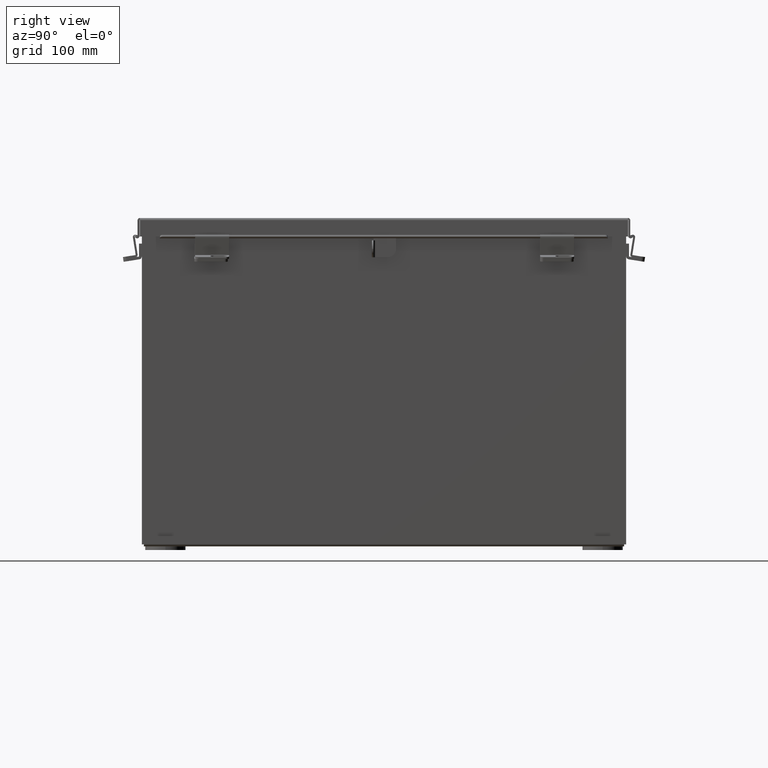
[diagram: clean part render]
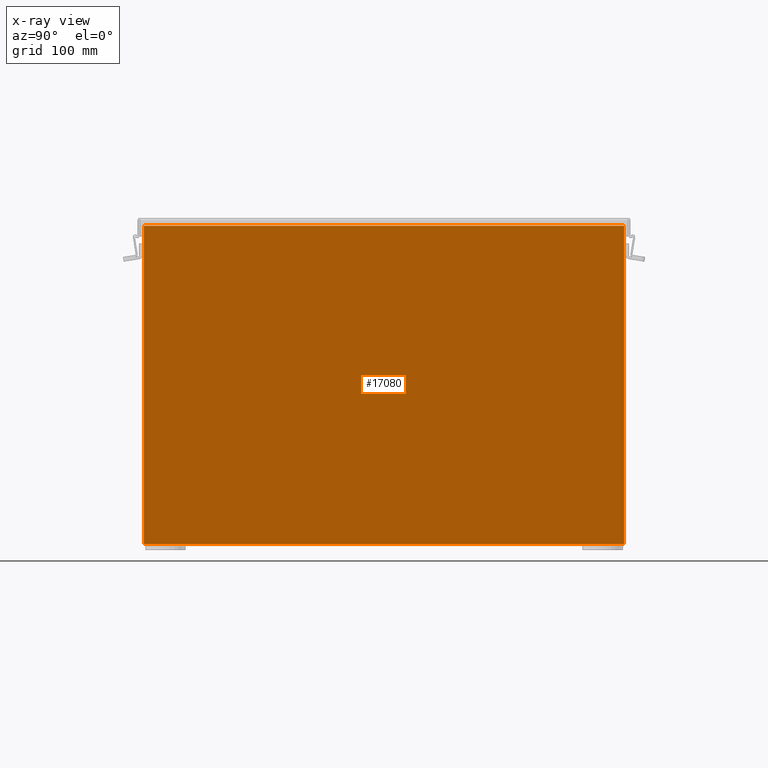
[diagram: x-ray — body ghosted, one internal face saturated and labeled with its STEP entity id]
A machine part, right view, then the same camera in x-ray: the body is ghosted and one INTERNAL B-rep face — a face not visible from any outside direction — is saturated and labeled: STEP entity #17080.
In plain terms, the highlighted planar face has unit normal (-1, 0, 0).
Its self-contained STEP definition (entity closure, byte-faithful):
#36 = PLANE ( 'NONE',  #1511 ) ;
#1287 = CARTESIAN_POINT ( 'NONE',  ( 5.925299999999999100, -8.925300000000003600, 0.01300000000000011600 ) ) ;
#1370 = FACE_OUTER_BOUND ( 'NONE', #6200, .T. ) ;
#1511 = AXIS2_PLACEMENT_3D ( 'NONE', #7590, #18026, #9102 ) ;
#4210 = ORIENTED_EDGE ( 'NONE', *, *, #18274, .F. ) ;
#4909 = ORIENTED_EDGE ( 'NONE', *, *, #10004, .F. ) ;
#5287 = VERTEX_POINT ( 'NONE', #6086 ) ;
#6086 = CARTESIAN_POINT ( 'NONE',  ( 5.925299999999999100, -8.925300000000003600, 0.01300000000000011600 ) ) ;
#6185 = LINE ( 'NONE', #14444, #13670 ) ;
#6200 = EDGE_LOOP ( 'NONE', ( #10662, #14826, #4210, #4909 ) ) ;
#6643 = CARTESIAN_POINT ( 'NONE',  ( 5.925300000000040900, 8.925299999999996500, 11.83760000000000000 ) ) ;
#6692 = LINE ( 'NONE', #1287, #10200 ) ;
#7590 = CARTESIAN_POINT ( 'NONE',  ( 5.925299999999999100, 0.0000000000000000000, -2.102669252623462500E-014 ) ) ;
#9102 = DIRECTION ( 'NONE',  ( 3.503965158194252100E-015, 0.0000000000000000000, 1.000000000000000000 ) ) ;
#9566 = VECTOR ( 'NONE', #16226, 39.37007874015748100 ) ;
#10004 = EDGE_CURVE ( 'NONE', #5287, #15358, #6692, .T. ) ;
#10200 = VECTOR ( 'NONE', #11812, 39.37007874015748100 ) ;
#10662 = ORIENTED_EDGE ( 'NONE', *, *, #11042, .F. ) ;
#11042 = EDGE_CURVE ( 'NONE', #13476, #5287, #6185, .T. ) ;
#11812 = DIRECTION ( 'NONE',  ( 0.0000000000000000000, 1.000000000000000000, 0.0000000000000000000 ) ) ;
#13077 = DIRECTION ( 'NONE',  ( 3.503965158194252900E-015, -9.220960942616452700E-017, 1.000000000000000000 ) ) ;
#13171 = CARTESIAN_POINT ( 'NONE',  ( 5.925300000000040900, -8.925300000000001800, 11.83760000000000000 ) ) ;
#13476 = VERTEX_POINT ( 'NONE', #13171 ) ;
#13670 = VECTOR ( 'NONE', #18939, 39.37007874015748100 ) ;
#13993 = LINE ( 'NONE', #14561, #17469 ) ;
#14444 = CARTESIAN_POINT ( 'NONE',  ( 5.925299999999999100, -8.925300000000003600, 0.0000000000000000000 ) ) ;
#14561 = CARTESIAN_POINT ( 'NONE',  ( 5.925300000000040900, 8.925299999999996500, 11.85060000000000000 ) ) ;
#14736 = CARTESIAN_POINT ( 'NONE',  ( 5.925300000000040900, 8.925299999999992900, 11.83760000000000000 ) ) ;
#14826 = ORIENTED_EDGE ( 'NONE', *, *, #19004, .F. ) ;
#15358 = VERTEX_POINT ( 'NONE', #15671 ) ;
#15671 = CARTESIAN_POINT ( 'NONE',  ( 5.925299999999999100, 8.925299999999996500, 0.01300000000000011600 ) ) ;
#16226 = DIRECTION ( 'NONE',  ( -0.0000000000000000000, -1.000000000000000000, -0.0000000000000000000 ) ) ;
#17080 = ADVANCED_FACE ( 'NONE', ( #1370 ), #36, .T. ) ;
#17469 = VECTOR ( 'NONE', #13077, 39.37007874015748100 ) ;
#18026 = DIRECTION ( 'NONE',  ( -1.000000000000000000, 0.0000000000000000000, 3.503965158194252100E-015 ) ) ;
#18274 = EDGE_CURVE ( 'NONE', #15358, #18722, #13993, .T. ) ;
#18426 = LINE ( 'NONE', #14736, #9566 ) ;
#18722 = VERTEX_POINT ( 'NONE', #6643 ) ;
#18939 = DIRECTION ( 'NONE',  ( -3.503965158194252900E-015, -0.0000000000000000000, -1.000000000000000000 ) ) ;
#19004 = EDGE_CURVE ( 'NONE', #18722, #13476, #18426, .T. ) ;